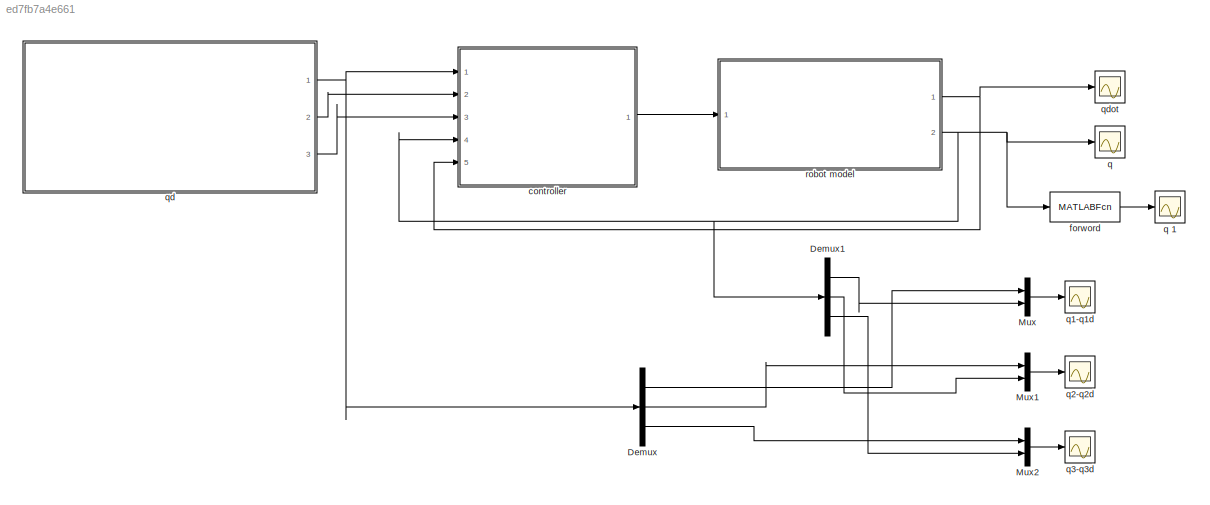
MODEL slx_ed7fb7a4e661
KIND model
CONFIG AbsTol = auto
CONFIG EnableMultiTasking = off
CONFIG FixedStep = auto
CONFIG MaxStep = auto
CONFIG MinStep = auto
CONFIG RelTol = 1e-3
CONFIG SampleTimeConstraint = Unconstrained
CONFIG Solver = VariableStepAuto
CONFIG SolverName = VariableStepAuto
CONFIG StartTime = 0.0
CONFIG StopTime = 10
BLOCK [Demux] Demux
  DisplayOption = bar
  Outputs = 3
  Ports = [1, 3]
BLOCK [Demux] Demux1
  DisplayOption = bar
  Outputs = 3
  Ports = [1, 3]
BLOCK [Mux] Mux
  DisplayOption = bar
  Inputs = 2
  Ports = [2, 1]
BLOCK [Mux] Mux1
  DisplayOption = bar
  Inputs = 2
  Ports = [2, 1]
BLOCK [Mux] Mux2
  DisplayOption = bar
  Inputs = 2
  Ports = [2, 1]
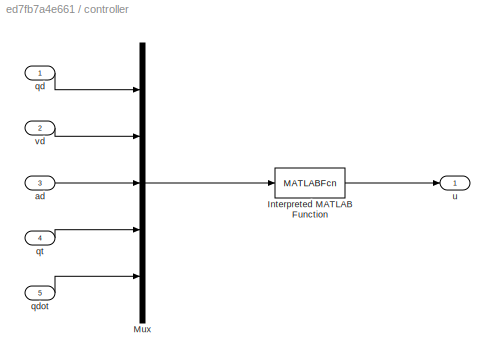
BLOCK [SubSystem] controller
  Ports = [5, 1]
  RequestExecContextInheritance = off
BLOCK [MATLABFcn] controller/Interpreted MATLAB Function
  MATLABFcn = controller_tracking_3dof
  Ports = [1, 1]
BLOCK [Mux] controller/Mux
  DisplayOption = bar
  Inputs = 5
  Ports = [5, 1]
BLOCK [Inport] controller/ad
  IconDisplay = Port number
  Port = 3
BLOCK [Inport] controller/qd
  IconDisplay = Port number
BLOCK [Inport] controller/qdot
  IconDisplay = Port number
  Port = 5
BLOCK [Inport] controller/qt
  IconDisplay = Port number
  Port = 4
BLOCK [Outport] controller/u 
  IconDisplay = Port number
BLOCK [Inport] controller/vd
  IconDisplay = Port number
  Port = 2
BLOCK [MATLABFcn] forword
  MATLABFcn = forward
  OutputDimensions = 3
  Ports = [1, 1]
BLOCK [Scope] q 
  Floating = off
  NumInputPorts = 1
  Ports = [1]
  ScopeSpecificationString = Simulink.scopes.TimeScopeBlockCfg('CurrentConfiguration', extmgr.ConfigurationSet(extmgr.Configuration('Core','General UI',true),extmgr.Configuration('Core','Source UI',true),extmgr.Configuration('Sources','WiredSimulink',true,'DataLoggingVariableName','ScopeData2'),extmgr.Configuration('Visuals','Time Domain',true,'SerializedDisplays',{struct('MinYLimReal','-397.43327','MaxYLimReal','266.62592','...<+1422ch>
BLOCK [Scope] q 1
  Floating = off
  NumInputPorts = 1
  Ports = [1]
  ScopeSpecificationString = Simulink.scopes.TimeScopeBlockCfg('CurrentConfiguration', extmgr.ConfigurationSet(extmgr.Configuration('Core','General UI',true),extmgr.Configuration('Core','Source UI',true),extmgr.Configuration('Sources','WiredSimulink',true,'DataLoggingVariableName','ScopeData1'),extmgr.Configuration('Visuals','Time Domain',true,'SerializedDisplays',{struct('MinYLimReal','-535.51002','MaxYLimReal','571.52636','...<+1404ch>
BLOCK [Scope] q1-q1d
  Floating = off
  NumInputPorts = 1
  Ports = [1]
  ScopeSpecificationString = Simulink.scopes.TimeScopeBlockCfg('CurrentConfiguration', extmgr.ConfigurationSet(extmgr.Configuration('Core','General UI',true),extmgr.Configuration('Core','Source UI',true),extmgr.Configuration('Sources','WiredSimulink',true,'DataLoggingVariableName','ScopeData1'),extmgr.Configuration('Visuals','Time Domain',true,'SerializedDisplays',{struct('MinYLimReal','-18.16245','MaxYLimReal','169.06249','Y...<+1416ch>
BLOCK [Scope] q2-q2d
  Floating = off
  NumInputPorts = 1
  Ports = [1]
  ScopeSpecificationString = Simulink.scopes.TimeScopeBlockCfg('CurrentConfiguration', extmgr.ConfigurationSet(extmgr.Configuration('Core','General UI',true),extmgr.Configuration('Core','Source UI',true),extmgr.Configuration('Sources','WiredSimulink',true,'DataLoggingVariableName','ScopeData3'),extmgr.Configuration('Visuals','Time Domain',true,'SerializedDisplays',{struct('MinYLimReal','27.55473','MaxYLimReal','288.05038','YL...<+1387ch>
BLOCK [Scope] q3-q3d
  Floating = off
  NumInputPorts = 1
  Ports = [1]
  ScopeSpecificationString = Simulink.scopes.TimeScopeBlockCfg('CurrentConfiguration', extmgr.ConfigurationSet(extmgr.Configuration('Core','General UI',true),extmgr.Configuration('Core','Source UI',true),extmgr.Configuration('Sources','WiredSimulink',true,'DataLoggingVariableName','ScopeData4'),extmgr.Configuration('Visuals','Time Domain',true,'SerializedDisplays',{struct('MinYLimReal','0.54063','MaxYLimReal','2.98834','YLabe...<+1375ch>
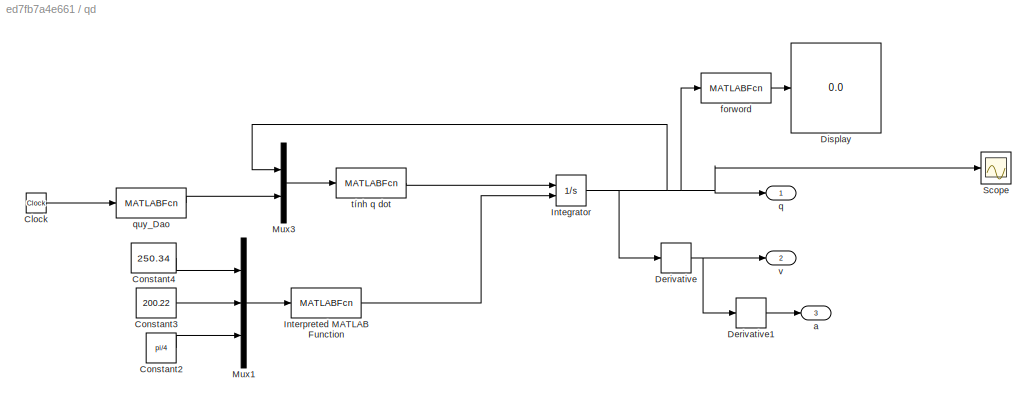
BLOCK [SubSystem] qd
  Ports = [0, 3]
  RequestExecContextInheritance = off
BLOCK [Clock] qd/Clock
  DisplayTime = on
BLOCK [Constant] qd/Constant2
  Value = pi/4
BLOCK [Constant] qd/Constant3
  Value = 200.22
BLOCK [Constant] qd/Constant4
  Value = 250.34
BLOCK [Derivative] qd/Derivative
BLOCK [Derivative] qd/Derivative1
BLOCK [Display] qd/Display
  Decimation = 3
  Ports = [1]
BLOCK [Integrator] qd/Integrator
  InitialConditionSource = external
  Ports = [2, 1]
BLOCK [MATLABFcn] qd/Interpreted MATLAB Function
  MATLABFcn = newton_raphson
  OutputDimensions = 3
  Ports = [1, 1]
BLOCK [Mux] qd/Mux1
  DisplayOption = bar
  Inputs = 3
  Ports = [3, 1]
BLOCK [Mux] qd/Mux3
  DisplayOption = bar
  Inputs = 2
  Ports = [2, 1]
BLOCK [Scope] qd/Scope
  Floating = off
  NumInputPorts = 1
  Ports = [1]
  ScopeSpecificationString = Simulink.scopes.TimeScopeBlockCfg('CurrentConfiguration', extmgr.ConfigurationSet(extmgr.Configuration('Core','General UI',true),extmgr.Configuration('Core','Source UI',true),extmgr.Configuration('Sources','WiredSimulink',true,'DataLoggingVariableName','ScopeData1'),extmgr.Configuration('Visuals','Time Domain',true,'SerializedDisplays',{struct('MinYLimReal','-372.73908','MaxYLimReal','44.46386','Y...<+1446ch>
BLOCK [Outport] qd/a 
  IconDisplay = Port number
  Port = 3
BLOCK [MATLABFcn] qd/forword
  MATLABFcn = forward
  OutputDimensions = 3
  Ports = [1, 1]
BLOCK [Outport] qd/q
  IconDisplay = Port number
BLOCK [MATLABFcn] qd/quy_Dao
  MATLABFcn = trajectory_tron
  OutputDimensions = 6
  Ports = [1, 1]
BLOCK [MATLABFcn] qd/tính q dot 
  MATLABFcn = tinh_q_dot
  OutputDimensions = 3
  Ports = [1, 1]
BLOCK [Outport] qd/v
  IconDisplay = Port number
  Port = 2
BLOCK [Scope] qdot
  Floating = off
  NumInputPorts = 1
  Ports = [1]
  ScopeSpecificationString = Simulink.scopes.TimeScopeBlockCfg('CurrentConfiguration', extmgr.ConfigurationSet(extmgr.Configuration('Core','General UI',true),extmgr.Configuration('Core','Source UI',true),extmgr.Configuration('Sources','WiredSimulink',true),extmgr.Configuration('Visuals','Time Domain',true,'SerializedDisplays',{struct('MinYLimReal','-62.82059','MaxYLimReal','105.81224','YLabelReal','','MinYLimMag','0.00000','M...<+1381ch>
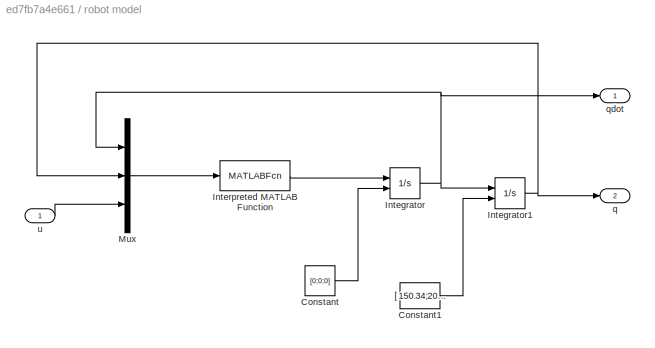
BLOCK [SubSystem] robot model
  Ports = [1, 2]
  RequestExecContextInheritance = off
BLOCK [Constant] robot model/Constant
  Value = [0;0;0]
BLOCK [Constant] robot model/Constant1
  Value = [ 150.34;200.22;pi/4];
BLOCK [Integrator] robot model/Integrator
  InitialConditionSource = external
  Ports = [2, 1]
BLOCK [Integrator] robot model/Integrator1
  InitialConditionSource = external
  Ports = [2, 1]
BLOCK [MATLABFcn] robot model/Interpreted MATLAB Function
  MATLABFcn = tinhq2dot
  Ports = [1, 1]
BLOCK [Mux] robot model/Mux
  DisplayOption = bar
  Inputs = 3
  Ports = [3, 1]
BLOCK [Outport] robot model/q 
  IconDisplay = Port number
  Port = 2
BLOCK [Outport] robot model/qdot
  IconDisplay = Port number
BLOCK [Inport] robot model/u
  IconDisplay = Port number
LINE Demux1:1 -> Mux:2
LINE Demux1:2 -> Mux1:2
LINE Demux1:3 -> Mux2:2
LINE Demux:1 -> Mux:1
LINE Demux:2 -> Mux1:1
LINE Demux:3 -> Mux2:1
LINE Mux1:1 -> q2-q2d:1
LINE Mux2:1 -> q3-q3d:1
LINE Mux:1 -> q1-q1d:1
LINE controller/Interpreted MATLAB Function:1 -> controller/u :1
LINE controller/Mux:1 -> controller/Interpreted MATLAB Function:1
LINE controller/ad:1 -> controller/Mux:3
LINE controller/qd:1 -> controller/Mux:1
LINE controller/qdot:1 -> controller/Mux:5
LINE controller/qt:1 -> controller/Mux:4
LINE controller/vd:1 -> controller/Mux:2
LINE controller:1 -> robot model:1
LINE forword:1 -> q 1:1
LINE qd/Clock:1 -> qd/quy_Dao:1
LINE qd/Constant2:1 -> qd/Mux1:3
LINE qd/Constant3:1 -> qd/Mux1:2
LINE qd/Constant4:1 -> qd/Mux1:1
LINE qd/Derivative1:1 -> qd/a :1
NET qd/Derivative:1 -> qd/Derivative1:1, qd/v:1
NET qd/Integrator:1 -> qd/Derivative:1, qd/Mux3:1, qd/Scope:1, qd/forword:1, qd/q:1
LINE qd/Interpreted MATLAB Function:1 -> qd/Integrator:2
LINE qd/Mux1:1 -> qd/Interpreted MATLAB Function:1
LINE qd/Mux3:1 -> qd/tính q dot :1
LINE qd/forword:1 -> qd/Display:1
LINE qd/quy_Dao:1 -> qd/Mux3:2
LINE qd/tính q dot :1 -> qd/Integrator:1
NET qd:1 -> Demux:1, controller:1
LINE qd:2 -> controller:2
LINE qd:3 -> controller:3
LINE robot model/Constant1:1 -> robot model/Integrator1:2
LINE robot model/Constant:1 -> robot model/Integrator:2
NET robot model/Integrator1:1 -> robot model/Mux:2, robot model/q :1
NET robot model/Integrator:1 -> robot model/Integrator1:1, robot model/Mux:1, robot model/qdot:1
LINE robot model/Interpreted MATLAB Function:1 -> robot model/Integrator:1
LINE robot model/Mux:1 -> robot model/Interpreted MATLAB Function:1
LINE robot model/u:1 -> robot model/Mux:3
NET robot model:1 -> controller:5, qdot:1
NET robot model:2 -> Demux1:1, controller:4, forword:1, q :1
note: NET lines group one-source signal fan-out (src -> all destinations, sorted); 1:1 wires keep LINE
